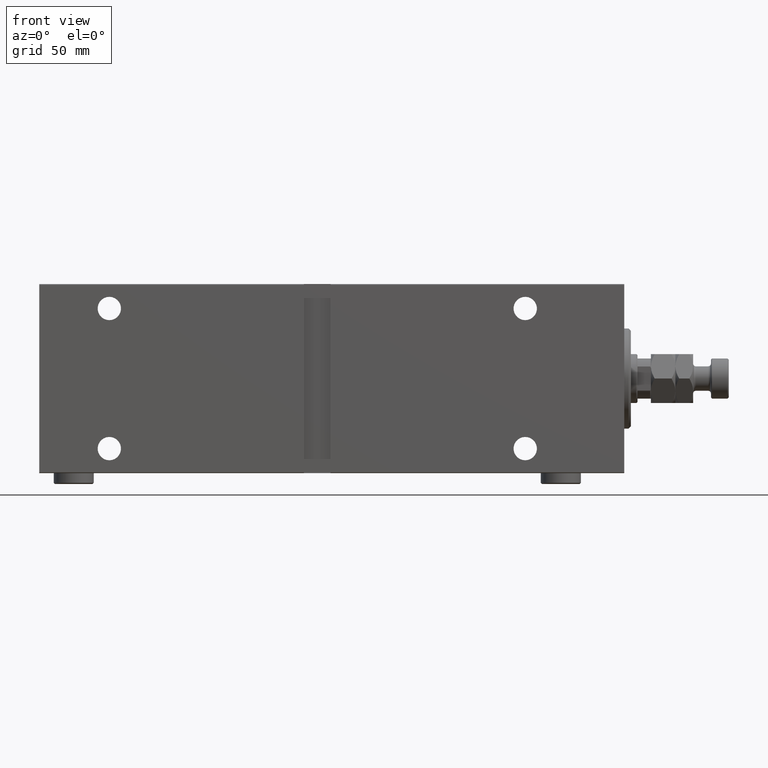
[diagram: clean part render]
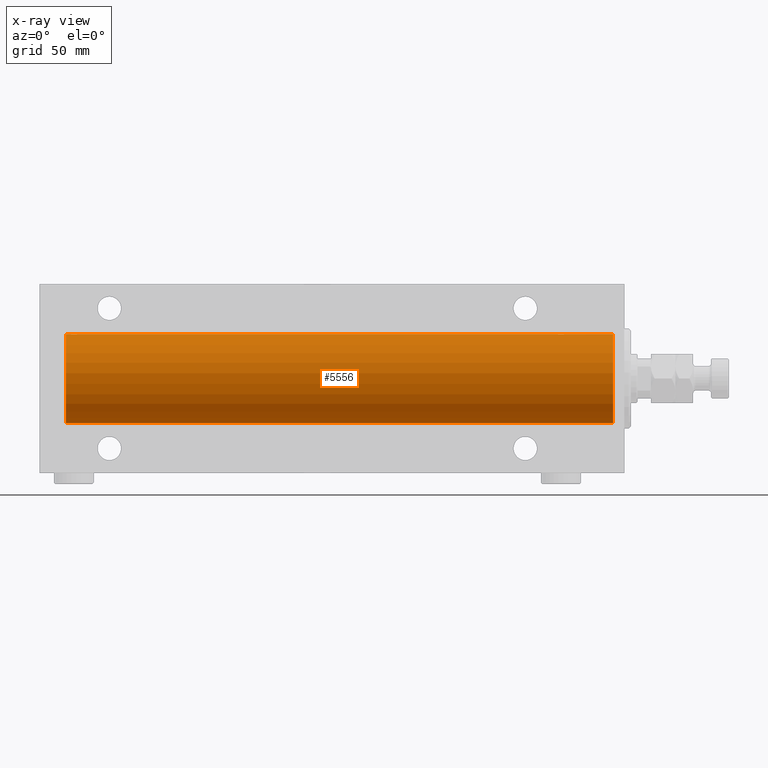
[diagram: x-ray — body ghosted, one internal face saturated and labeled with its STEP entity id]
A machine part, front view, then the same camera in x-ray: the body is ghosted and one INTERNAL B-rep face — a face not visible from any outside direction — is saturated and labeled: STEP entity #5556.
In plain terms, the highlighted cylindrical surface (partial cylindrical patch) has radius 20 mm, axis along (1, 0, -0).
Its self-contained STEP definition (entity closure, byte-faithful):
#552 = DIRECTION ( 'NONE',  ( -1.000000000000000000, -0.000000000000000000, -0.000000000000000000 ) ) ;
#1086 = CARTESIAN_POINT ( 'NONE',  ( 30.49999999999993250, 0.1322335637814686382, 19.99999999999999645 ) ) ;
#1669 = CARTESIAN_POINT ( 'NONE',  ( 251.0000000000000000, 0.000000000000000000, 20.00000000000000000 ) ) ;
#1950 = CARTESIAN_POINT ( 'NONE',  ( 249.0061577038071903, 1.322305185229299962, 19.95645382900617903 ) ) ;
#2605 = CARTESIAN_POINT ( 'NONE',  ( 251.0000000000000000, 0.000000000000000000, 20.00000000000000000 ) ) ;
#3821 = ORIENTED_EDGE ( 'NONE', *, *, #39403, .F. ) ;
#4997 = CARTESIAN_POINT ( 'NONE',  ( 246.9810052581388788, 1.935912154109689753, 19.90610216711451130 ) ) ;
#5205 = B_SPLINE_CURVE_WITH_KNOTS ( 'NONE', 3,
 ( #9173, #16597, #30820, #5681, #44969, #26188, #40353, #9395, #1950, #8500, #19630, #12883, #23591, #40800, #36871, #4997, #15691, #8716, #23133, #44069, #37327, #12193, #22895, #5225, #19403, #12415, #33629, #30132, #44286, #5452 ),
 .UNSPECIFIED., .F., .F.,
 ( 4, 2, 2, 2, 2, 2, 2, 2, 2, 2, 2, 2, 2, 2, 4 ),
 ( 6.293884343480953716E-18, 0.0003910512220831412721, 0.0007821024441662760389, 0.001173153666249410806, 0.001564204888332545573, 0.002346307332498815540, 0.003128409776665085074, 0.003519460998748178207, 0.003910512220831271341, 0.004301563442914364474, 0.004692614664997457607, 0.005083665887080551608, 0.005474717109163644742, 0.005865768331246737875, 0.006256819553329831009 ),
 .UNSPECIFIED. ) ;
#5225 = CARTESIAN_POINT ( 'NONE',  ( 245.7651054539801692, 1.003547732426790073, 19.97510079925437410 ) ) ;
#5355 = EDGE_CURVE ( 'NONE', #9629, #17034, #9567, .T. ) ;
#5452 = CARTESIAN_POINT ( 'NONE',  ( 245.5000000000000000, -1.553188236289650144E-23, 20.00000000000000000 ) ) ;
#5556 = ADVANCED_FACE ( 'NONE', ( #9514 ), #37216, .F. ) ;
#5681 = CARTESIAN_POINT ( 'NONE',  ( 249.4361522838332519, 0.5179893069484667878, 19.99370013622814923 ) ) ;
#5723 = CARTESIAN_POINT ( 'NONE',  ( 29.72950112230632769, 1.598854313793188320, 19.93684595445884256 ) ) ;
#6172 = B_SPLINE_CURVE_WITH_KNOTS ( 'NONE', 3,
 ( #33666, #1086, #40608, #29497, #11784, #8756, #37132, #38043, #19670, #5723, #33888, #23634, #12923, #24079, #31318, #17089, #16635, #23859, #16175, #34348, #12695, #6178, #12457, #20357, #16857, #19901, #34560, #13366, #31077, #45232 ),
 .UNSPECIFIED., .F., .F.,
 ( 4, 2, 2, 2, 2, 2, 2, 2, 2, 2, 2, 2, 2, 2, 4 ),
 ( 2.326943606913493903E-17, 0.0003910512220831276653, 0.0007821024441662321287, 0.001173153666249336213, 0.001564204888332440839, 0.002346307332498649440, 0.003128409776664858692, 0.003519460998747968306, 0.003910512220831077919, 0.004301563442914186665, 0.004692614664997295411, 0.005083665887080405892, 0.005474717109163514638, 0.005865768331246624251, 0.006256819553329733864 ),
 .UNSPECIFIED. ) ;
#6178 = CARTESIAN_POINT ( 'NONE',  ( 26.99261358456011806, 1.321069663197660171, 19.95654117037012298 ) ) ;
#6606 = ORIENTED_EDGE ( 'NONE', *, *, #39555, .T. ) ;
#8318 = ORIENTED_EDGE ( 'NONE', *, *, #26627, .T. ) ;
#8500 = CARTESIAN_POINT ( 'NONE',  ( 248.7295011223063455, 1.598854313793174775, 19.93684595445884966 ) ) ;
#8716 = CARTESIAN_POINT ( 'NONE',  ( 246.6140381054416935, 1.797847595792758879, 19.91909332229798224 ) ) ;
#8756 = CARTESIAN_POINT ( 'NONE',  ( 30.29721343056695204, 0.8872481584516898057, 19.98067755938509293 ) ) ;
#8832 = DIRECTION ( 'NONE',  ( 0.000000000000000000, 0.000000000000000000, 1.000000000000000000 ) ) ;
#9173 = CARTESIAN_POINT ( 'NONE',  ( 249.5000000000000000, 6.477051911798287571E-15, 20.00000000000000000 ) ) ;
#9395 = CARTESIAN_POINT ( 'NONE',  ( 249.0905973345755342, 1.219458756546266676, 19.96308513509966431 ) ) ;
#9514 = FACE_OUTER_BOUND ( 'NONE', #42024, .T. ) ;
#9567 = LINE ( 'NONE', #1669, #17789 ) ;
#9629 = VERTEX_POINT ( 'NONE', #38875 ) ;
#11600 = EDGE_CURVE ( 'NONE', #22174, #22809, #6172, .T. ) ;
#11784 = CARTESIAN_POINT ( 'NONE',  ( 30.39765113166073363, 0.6450624715427786260, 19.98996196681220283 ) ) ;
#12193 = CARTESIAN_POINT ( 'NONE',  ( 245.9926135845601323, 1.321069663197669275, 19.95654117037011233 ) ) ;
#12209 = CARTESIAN_POINT ( 'NONE',  ( 251.0000000000000000, 2.449293598294706513E-15, -20.00000000000000000 ) ) ;
#12415 = CARTESIAN_POINT ( 'NONE',  ( 245.6021031264113503, 0.6443418861413122700, 19.98998539619404369 ) ) ;
#12457 = CARTESIAN_POINT ( 'NONE',  ( 26.90992932310325969, 1.220099331833888634, 19.96304379627741099 ) ) ;
#12537 = DIRECTION ( 'NONE',  ( -1.000000000000000000, -0.000000000000000000, -0.000000000000000000 ) ) ;
#12695 = CARTESIAN_POINT ( 'NONE',  ( 27.17939834916165509, 1.507796451871717514, 19.94330239452387943 ) ) ;
#12883 = CARTESIAN_POINT ( 'NONE',  ( 248.0251390845500055, 1.947330458682946075, 19.90522393307485416 ) ) ;
#12923 = CARTESIAN_POINT ( 'NONE',  ( 28.76180153897436753, 1.999905101582718503, 19.89975827978156531 ) ) ;
#13366 = CARTESIAN_POINT ( 'NONE',  ( 26.51308707988552982, 0.2631998640366412512, 19.99867931558985745 ) ) ;
#15691 = CARTESIAN_POINT ( 'NONE',  ( 246.8562886936015275, 1.898109641280497639, 19.90978941500366872 ) ) ;
#16175 = CARTESIAN_POINT ( 'NONE',  ( 27.49702773215045681, 1.735228749583822117, 19.92471474456649005 ) ) ;
#16597 = CARTESIAN_POINT ( 'NONE',  ( 249.5000000000000000, 0.1322335637814730791, 19.99999999999999289 ) ) ;
#16623 = CARTESIAN_POINT ( 'NONE',  ( 26.50000000000000355, -1.552675476701256486E-23, 20.00000000000000000 ) ) ;
#16635 = CARTESIAN_POINT ( 'NONE',  ( 27.85628869360149551, 1.898109641280495419, 19.90978941500367583 ) ) ;
#16647 = EDGE_CURVE ( 'NONE', #44034, #22174, #37247, .T. ) ;
#16857 = CARTESIAN_POINT ( 'NONE',  ( 26.70246098872837948, 0.8865903856744223877, 19.98070694681038972 ) ) ;
#17014 = DIRECTION ( 'NONE',  ( -1.000000000000000000, -0.000000000000000000, -0.000000000000000000 ) ) ;
#17034 = VERTEX_POINT ( 'NONE', #45757 ) ;
#17089 = CARTESIAN_POINT ( 'NONE',  ( 27.98100525813888240, 1.935912154109689531, 19.90610216711450775 ) ) ;
#17789 = VECTOR ( 'NONE', #30079, 1000.000000000000000 ) ;
#17792 = ORIENTED_EDGE ( 'NONE', *, *, #28608, .T. ) ;
#19403 = CARTESIAN_POINT ( 'NONE',  ( 245.7024609887283759, 0.8865903856744304923, 19.98070694681039328 ) ) ;
#19630 = CARTESIAN_POINT ( 'NONE',  ( 248.5064575907383926, 1.747830109444734381, 19.92373272380677207 ) ) ;
#19670 = CARTESIAN_POINT ( 'NONE',  ( 30.00615770380712277, 1.322305185229317281, 19.95645382900617548 ) ) ;
#19901 = CARTESIAN_POINT ( 'NONE',  ( 26.60210312641134678, 0.6443418861413038323, 19.98998539619404724 ) ) ;
#20288 = VERTEX_POINT ( 'NONE', #32893 ) ;
#20357 = CARTESIAN_POINT ( 'NONE',  ( 26.76510545398015850, 1.003547732426796957, 19.97510079925437765 ) ) ;
#21094 = VECTOR ( 'NONE', #30745, 1000.000000000000000 ) ;
#21252 = AXIS2_PLACEMENT_3D ( 'NONE', #39820, #32404, #36120 ) ;
#22174 = VERTEX_POINT ( 'NONE', #43352 ) ;
#22809 = VERTEX_POINT ( 'NONE', #16623 ) ;
#22895 = CARTESIAN_POINT ( 'NONE',  ( 245.9099293231032561, 1.220099331833882195, 19.96304379627741454 ) ) ;
#23133 = CARTESIAN_POINT ( 'NONE',  ( 246.4970277321504568, 1.735228749583813901, 19.92471474456649005 ) ) ;
#23591 = CARTESIAN_POINT ( 'NONE',  ( 247.7618015389742823, 1.999905101582714284, 19.89975827978156175 ) ) ;
#23634 = CARTESIAN_POINT ( 'NONE',  ( 29.02513908454997704, 1.947330458682951404, 19.90522393307485061 ) ) ;
#23747 = AXIS2_PLACEMENT_3D ( 'NONE', #26524, #12537, #8832 ) ;
#23859 = CARTESIAN_POINT ( 'NONE',  ( 27.61403810544161885, 1.797847595792754438, 19.91909332229799290 ) ) ;
#24079 = CARTESIAN_POINT ( 'NONE',  ( 28.37018818709292134, 2.000047251570880480, 19.89974399317116038 ) ) ;
#25385 = CIRCLE ( 'NONE', #37253, 20.00000000000000000 ) ;
#25387 = CARTESIAN_POINT ( 'NONE',  ( 5.000000000000004441, 0.000000000000000000, 20.00000000000000000 ) ) ;
#26188 = CARTESIAN_POINT ( 'NONE',  ( 249.2972134305668703, 0.8872481584516723752, 19.98067755938510359 ) ) ;
#26252 = ORIENTED_EDGE ( 'NONE', *, *, #11600, .T. ) ;
#26524 = CARTESIAN_POINT ( 'NONE',  ( 251.0000000000000000, 0.000000000000000000, 0.000000000000000000 ) ) ;
#26627 = EDGE_CURVE ( 'NONE', #28279, #20288, #45746, .T. ) ;
#27757 = LINE ( 'NONE', #2605, #32803 ) ;
#27983 = DIRECTION ( 'NONE',  ( -1.000000000000000000, 0.000000000000000000, 0.000000000000000000 ) ) ;
#28279 = VERTEX_POINT ( 'NONE', #25387 ) ;
#28608 = EDGE_CURVE ( 'NONE', #17034, #44034, #5205, .T. ) ;
#29497 = CARTESIAN_POINT ( 'NONE',  ( 30.43615228383326610, 0.5179893069484811097, 19.99370013622814213 ) ) ;
#30079 = DIRECTION ( 'NONE',  ( -1.000000000000000000, -0.000000000000000000, -0.000000000000000000 ) ) ;
#30132 = CARTESIAN_POINT ( 'NONE',  ( 245.5130870798855369, 0.2631998640366418618, 19.99867931558985745 ) ) ;
#30324 = ORIENTED_EDGE ( 'NONE', *, *, #40518, .F. ) ;
#30745 = DIRECTION ( 'NONE',  ( -1.000000000000000000, -0.000000000000000000, -0.000000000000000000 ) ) ;
#30820 = CARTESIAN_POINT ( 'NONE',  ( 249.4870149461532662, 0.2622407139811160914, 19.99868965376114716 ) ) ;
#31077 = CARTESIAN_POINT ( 'NONE',  ( 26.50000000000001421, 0.1305706983324422532, 20.00000000000000355 ) ) ;
#31295 = VECTOR ( 'NONE', #552, 1000.000000000000000 ) ;
#31318 = CARTESIAN_POINT ( 'NONE',  ( 28.23758582179998911, 1.987020435121065853, 19.90106552791689509 ) ) ;
#31804 = VERTEX_POINT ( 'NONE', #12209 ) ;
#32221 = CARTESIAN_POINT ( 'NONE',  ( 251.0000000000000000, 2.449293598294706513E-15, -20.00000000000000000 ) ) ;
#32404 = DIRECTION ( 'NONE',  ( -1.000000000000000000, 0.000000000000000000, 0.000000000000000000 ) ) ;
#32803 = VECTOR ( 'NONE', #17014, 1000.000000000000000 ) ;
#32893 = CARTESIAN_POINT ( 'NONE',  ( 5.000000000000004441, 2.449293598294706513E-15, -20.00000000000000000 ) ) ;
#33629 = CARTESIAN_POINT ( 'NONE',  ( 245.5642685113271000, 0.5196544277756655061, 19.99365919015135873 ) ) ;
#33666 = CARTESIAN_POINT ( 'NONE',  ( 30.50000000000000000, -1.366442278252767519E-14, 20.00000000000000000 ) ) ;
#33772 = CARTESIAN_POINT ( 'NONE',  ( 251.0000000000000000, 0.000000000000000000, 20.00000000000000000 ) ) ;
#33888 = CARTESIAN_POINT ( 'NONE',  ( 29.50645759073828600, 1.747830109444744595, 19.92373272380676852 ) ) ;
#34348 = CARTESIAN_POINT ( 'NONE',  ( 27.28039724650257014, 1.590453176650906908, 19.93679350243183990 ) ) ;
#34560 = CARTESIAN_POINT ( 'NONE',  ( 26.56426851132708222, 0.5196544277756653951, 19.99365919015135873 ) ) ;
#34957 = CARTESIAN_POINT ( 'NONE',  ( 251.0000000000000000, 0.000000000000000000, 0.000000000000000000 ) ) ;
#35033 = ORIENTED_EDGE ( 'NONE', *, *, #5355, .T. ) ;
#35421 = DIRECTION ( 'NONE',  ( 0.000000000000000000, 0.000000000000000000, 1.000000000000000000 ) ) ;
#36120 = DIRECTION ( 'NONE',  ( 0.000000000000000000, 0.000000000000000000, 1.000000000000000000 ) ) ;
#36648 = ORIENTED_EDGE ( 'NONE', *, *, #16647, .T. ) ;
#36871 = CARTESIAN_POINT ( 'NONE',  ( 247.2375858217999678, 1.987020435121064965, 19.90106552791689154 ) ) ;
#37132 = CARTESIAN_POINT ( 'NONE',  ( 30.23576365127895116, 1.002099838626329120, 19.97517568592526516 ) ) ;
#37216 = CYLINDRICAL_SURFACE ( 'NONE', #23747, 20.00000000000000000 ) ;
#37247 = LINE ( 'NONE', #33772, #21094 ) ;
#37253 = AXIS2_PLACEMENT_3D ( 'NONE', #34957, #27983, #35421 ) ;
#37327 = CARTESIAN_POINT ( 'NONE',  ( 246.1793983491616871, 1.507796451871725285, 19.94330239452387588 ) ) ;
#38043 = CARTESIAN_POINT ( 'NONE',  ( 30.09059733457551289, 1.219458756546281775, 19.96308513509966787 ) ) ;
#38875 = CARTESIAN_POINT ( 'NONE',  ( 251.0000000000000000, 0.000000000000000000, 20.00000000000000000 ) ) ;
#39403 = EDGE_CURVE ( 'NONE', #31804, #20288, #43353, .T. ) ;
#39555 = EDGE_CURVE ( 'NONE', #22809, #28279, #27757, .T. ) ;
#39820 = CARTESIAN_POINT ( 'NONE',  ( 5.000000000000004441, 0.000000000000000000, 0.000000000000000000 ) ) ;
#39998 = CARTESIAN_POINT ( 'NONE',  ( 245.5000000000000000, -1.553188236289650144E-23, 20.00000000000000000 ) ) ;
#40353 = CARTESIAN_POINT ( 'NONE',  ( 249.2357636512790009, 1.002099838626311801, 19.97517568592526160 ) ) ;
#40518 = EDGE_CURVE ( 'NONE', #9629, #31804, #25385, .T. ) ;
#40608 = CARTESIAN_POINT ( 'NONE',  ( 30.48701494615325558, 0.2622407139811342436, 19.99868965376114716 ) ) ;
#40800 = CARTESIAN_POINT ( 'NONE',  ( 247.3701881870929640, 2.000047251570877815, 19.89974399317115683 ) ) ;
#42024 = EDGE_LOOP ( 'NONE', ( #3821, #30324, #35033, #17792, #36648, #26252, #6606, #8318 ) ) ;
#43352 = CARTESIAN_POINT ( 'NONE',  ( 30.50000000000000000, -1.366442278252767519E-14, 20.00000000000000000 ) ) ;
#43353 = LINE ( 'NONE', #32221, #31295 ) ;
#44034 = VERTEX_POINT ( 'NONE', #39998 ) ;
#44069 = CARTESIAN_POINT ( 'NONE',  ( 246.2803972465025311, 1.590453176650897360, 19.93679350243184345 ) ) ;
#44286 = CARTESIAN_POINT ( 'NONE',  ( 245.4999999999999716, 0.1305706983324437798, 20.00000000000000355 ) ) ;
#44969 = CARTESIAN_POINT ( 'NONE',  ( 249.3976511316607514, 0.6450624715427595302, 19.98996196681220994 ) ) ;
#45232 = CARTESIAN_POINT ( 'NONE',  ( 26.50000000000000355, -1.552675476701256486E-23, 20.00000000000000000 ) ) ;
#45746 = CIRCLE ( 'NONE', #21252, 20.00000000000000000 ) ;
#45757 = CARTESIAN_POINT ( 'NONE',  ( 249.5000000000000000, 6.477051911798287571E-15, 20.00000000000000000 ) ) ;